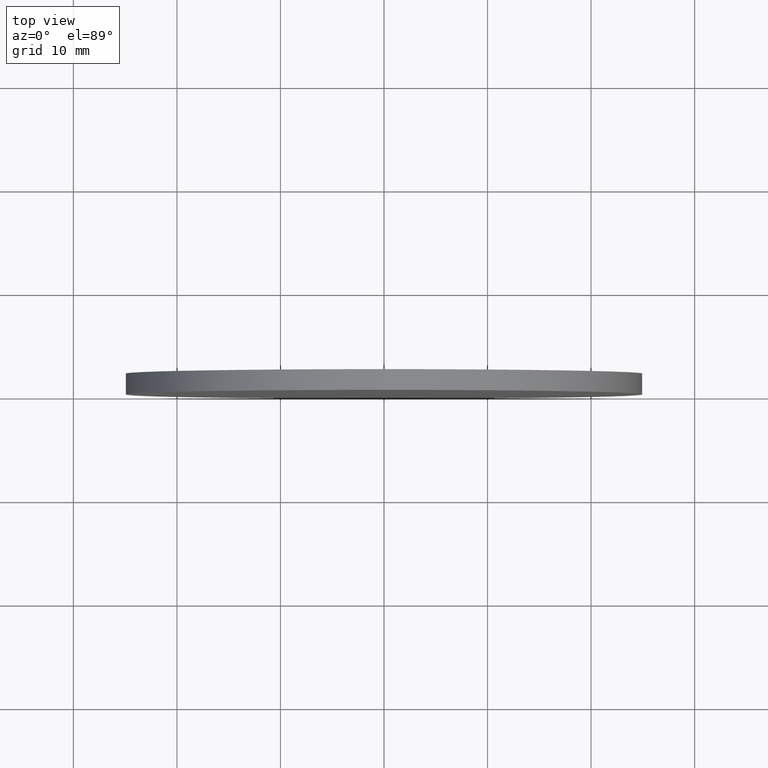
[diagram: clean part render]
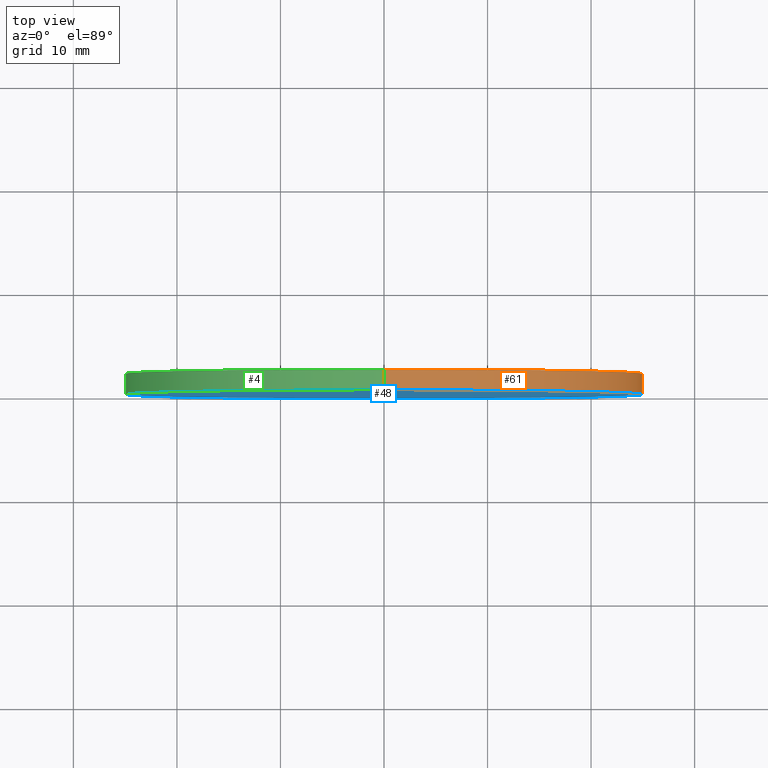
[diagram: same view with three faces highlighted in distinct colors, each labeled with its STEP entity id]
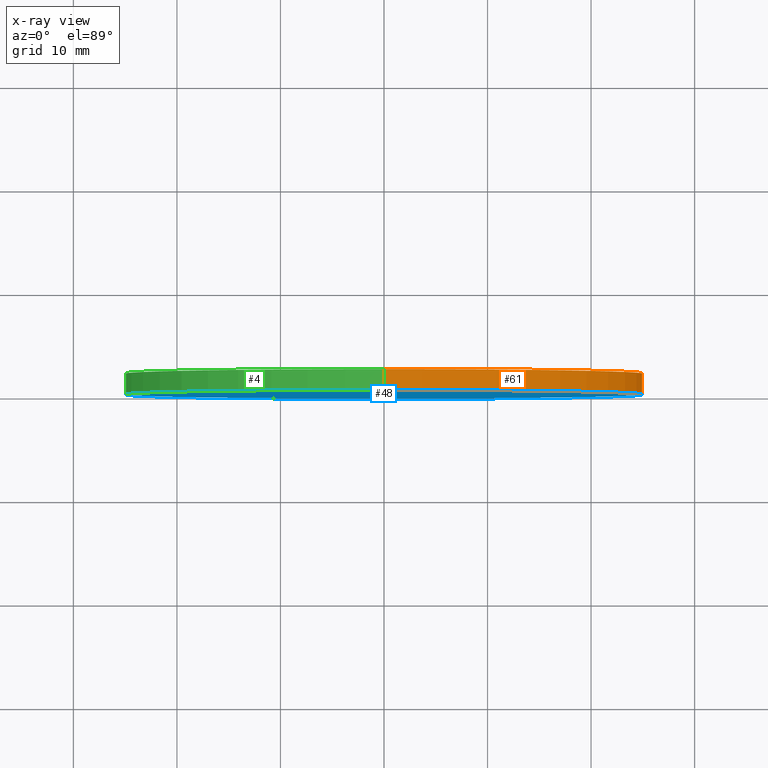
[diagram: x-ray of the same camera — body ghosted, the three highlighted faces saturated]
A machine part, top view with three faces highlighted in distinct colors.
The next image is the same camera in x-ray (body ghosted, the three faces saturated) — at least one of them is partly hidden behind the body in this view.
Their STEP definitions:

[orange] entity #61 — the highlighted cylindrical surface (partial cylindrical patch) has radius 25 mm, axis along (-0, -1, -0).
#3 = VERTEX_POINT ( 'NONE', #20 ) ;
#5 = VECTOR ( 'NONE', #100, 1000.000000000000000 ) ;
#10 = CARTESIAN_POINT ( 'NONE',  ( 0.0000000000000000000, 2.000000000000000000, 0.0000000000000000000 ) ) ;
#11 = CARTESIAN_POINT ( 'NONE',  ( 0.0000000000000000000, 2.000000000000000000, -25.00000000000000000 ) ) ;
#14 = VECTOR ( 'NONE', #70, 1000.000000000000000 ) ;
#15 = AXIS2_PLACEMENT_3D ( 'NONE', #34, #102, #19 ) ;
#17 = CARTESIAN_POINT ( 'NONE',  ( 3.061616997868383000E-015, 0.0000000000000000000, 25.00000000000000000 ) ) ;
#19 = DIRECTION ( 'NONE',  ( 0.0000000000000000000, 0.0000000000000000000, 1.000000000000000000 ) ) ;
#20 = CARTESIAN_POINT ( 'NONE',  ( 0.0000000000000000000, 2.000000000000000000, -25.00000000000000000 ) ) ;
#24 = ORIENTED_EDGE ( 'NONE', *, *, #66, .T. ) ;
#25 = EDGE_CURVE ( 'NONE', #86, #115, #98, .T. ) ;
#31 = AXIS2_PLACEMENT_3D ( 'NONE', #10, #54, #82 ) ;
#33 = FACE_OUTER_BOUND ( 'NONE', #60, .T. ) ;
#34 = CARTESIAN_POINT ( 'NONE',  ( 0.0000000000000000000, 2.000000000000000000, 0.0000000000000000000 ) ) ;
#35 = AXIS2_PLACEMENT_3D ( 'NONE', #130, #55, #124 ) ;
#36 = EDGE_CURVE ( 'NONE', #111, #3, #125, .T. ) ;
#46 = EDGE_CURVE ( 'NONE', #3, #115, #72, .T. ) ;
#53 = CARTESIAN_POINT ( 'NONE',  ( 0.0000000000000000000, 0.0000000000000000000, -25.00000000000000000 ) ) ;
#54 = DIRECTION ( 'NONE',  ( -0.0000000000000000000, -1.000000000000000000, -0.0000000000000000000 ) ) ;
#55 = DIRECTION ( 'NONE',  ( 0.0000000000000000000, 1.000000000000000000, 0.0000000000000000000 ) ) ;
#60 = EDGE_LOOP ( 'NONE', ( #132, #24, #113, #71 ) ) ;
#61 = ADVANCED_FACE ( 'NONE', ( #33 ), #91, .T. ) ;
#66 = EDGE_CURVE ( 'NONE', #111, #86, #104, .T. ) ;
#70 = DIRECTION ( 'NONE',  ( -0.0000000000000000000, -1.000000000000000000, -0.0000000000000000000 ) ) ;
#71 = ORIENTED_EDGE ( 'NONE', *, *, #46, .F. ) ;
#72 = LINE ( 'NONE', #11, #14 ) ;
#82 = DIRECTION ( 'NONE',  ( 0.0000000000000000000, 0.0000000000000000000, -1.000000000000000000 ) ) ;
#86 = VERTEX_POINT ( 'NONE', #17 ) ;
#91 = CYLINDRICAL_SURFACE ( 'NONE', #31, 25.00000000000000000 ) ;
#98 = CIRCLE ( 'NONE', #35, 25.00000000000000000 ) ;
#100 = DIRECTION ( 'NONE',  ( -0.0000000000000000000, -1.000000000000000000, -0.0000000000000000000 ) ) ;
#102 = DIRECTION ( 'NONE',  ( 0.0000000000000000000, 1.000000000000000000, 0.0000000000000000000 ) ) ;
#104 = LINE ( 'NONE', #129, #5 ) ;
#109 = CARTESIAN_POINT ( 'NONE',  ( 3.061616997868383000E-015, 2.000000000000000000, 25.00000000000000000 ) ) ;
#111 = VERTEX_POINT ( 'NONE', #109 ) ;
#113 = ORIENTED_EDGE ( 'NONE', *, *, #25, .T. ) ;
#115 = VERTEX_POINT ( 'NONE', #53 ) ;
#124 = DIRECTION ( 'NONE',  ( 0.0000000000000000000, 0.0000000000000000000, 1.000000000000000000 ) ) ;
#125 = CIRCLE ( 'NONE', #15, 25.00000000000000000 ) ;
#129 = CARTESIAN_POINT ( 'NONE',  ( 3.061616997868383000E-015, 2.000000000000000000, 25.00000000000000000 ) ) ;
#130 = CARTESIAN_POINT ( 'NONE',  ( 0.0000000000000000000, 0.0000000000000000000, 0.0000000000000000000 ) ) ;
#132 = ORIENTED_EDGE ( 'NONE', *, *, #36, .F. ) ;

[blue] entity #48 — the highlighted planar face has unit normal (0, 1, 0).
#13 = FACE_OUTER_BOUND ( 'NONE', #58, .T. ) ;
#17 = CARTESIAN_POINT ( 'NONE',  ( 3.061616997868383000E-015, 0.0000000000000000000, 25.00000000000000000 ) ) ;
#22 = ORIENTED_EDGE ( 'NONE', *, *, #25, .F. ) ;
#25 = EDGE_CURVE ( 'NONE', #86, #115, #98, .T. ) ;
#35 = AXIS2_PLACEMENT_3D ( 'NONE', #130, #55, #124 ) ;
#37 = AXIS2_PLACEMENT_3D ( 'NONE', #89, #42, #110 ) ;
#39 = EDGE_CURVE ( 'NONE', #115, #86, #44, .T. ) ;
#42 = DIRECTION ( 'NONE',  ( 0.0000000000000000000, 1.000000000000000000, 0.0000000000000000000 ) ) ;
#44 = CIRCLE ( 'NONE', #112, 25.00000000000000000 ) ;
#48 = ADVANCED_FACE ( 'NONE', ( #13 ), #123, .F. ) ;
#53 = CARTESIAN_POINT ( 'NONE',  ( 0.0000000000000000000, 0.0000000000000000000, -25.00000000000000000 ) ) ;
#55 = DIRECTION ( 'NONE',  ( 0.0000000000000000000, 1.000000000000000000, 0.0000000000000000000 ) ) ;
#58 = EDGE_LOOP ( 'NONE', ( #62, #22 ) ) ;
#62 = ORIENTED_EDGE ( 'NONE', *, *, #39, .F. ) ;
#69 = DIRECTION ( 'NONE',  ( 0.0000000000000000000, 0.0000000000000000000, 1.000000000000000000 ) ) ;
#81 = CARTESIAN_POINT ( 'NONE',  ( 0.0000000000000000000, 0.0000000000000000000, 0.0000000000000000000 ) ) ;
#86 = VERTEX_POINT ( 'NONE', #17 ) ;
#89 = CARTESIAN_POINT ( 'NONE',  ( 0.0000000000000000000, 0.0000000000000000000, 0.0000000000000000000 ) ) ;
#98 = CIRCLE ( 'NONE', #35, 25.00000000000000000 ) ;
#110 = DIRECTION ( 'NONE',  ( 0.0000000000000000000, -0.0000000000000000000, 1.000000000000000000 ) ) ;
#112 = AXIS2_PLACEMENT_3D ( 'NONE', #81, #140, #69 ) ;
#115 = VERTEX_POINT ( 'NONE', #53 ) ;
#123 = PLANE ( 'NONE',  #37 ) ;
#124 = DIRECTION ( 'NONE',  ( 0.0000000000000000000, 0.0000000000000000000, 1.000000000000000000 ) ) ;
#130 = CARTESIAN_POINT ( 'NONE',  ( 0.0000000000000000000, 0.0000000000000000000, 0.0000000000000000000 ) ) ;
#140 = DIRECTION ( 'NONE',  ( 0.0000000000000000000, 1.000000000000000000, 0.0000000000000000000 ) ) ;

[green] entity #4 — the highlighted cylindrical surface (partial cylindrical patch) has radius 25 mm, axis along (-0, -1, -0).
#1 = DIRECTION ( 'NONE',  ( 0.0000000000000000000, 0.0000000000000000000, -1.000000000000000000 ) ) ;
#3 = VERTEX_POINT ( 'NONE', #20 ) ;
#4 = ADVANCED_FACE ( 'NONE', ( #138 ), #74, .T. ) ;
#5 = VECTOR ( 'NONE', #100, 1000.000000000000000 ) ;
#8 = AXIS2_PLACEMENT_3D ( 'NONE', #79, #139, #68 ) ;
#11 = CARTESIAN_POINT ( 'NONE',  ( 0.0000000000000000000, 2.000000000000000000, -25.00000000000000000 ) ) ;
#12 = DIRECTION ( 'NONE',  ( -0.0000000000000000000, -1.000000000000000000, -0.0000000000000000000 ) ) ;
#14 = VECTOR ( 'NONE', #70, 1000.000000000000000 ) ;
#17 = CARTESIAN_POINT ( 'NONE',  ( 3.061616997868383000E-015, 0.0000000000000000000, 25.00000000000000000 ) ) ;
#20 = CARTESIAN_POINT ( 'NONE',  ( 0.0000000000000000000, 2.000000000000000000, -25.00000000000000000 ) ) ;
#32 = ORIENTED_EDGE ( 'NONE', *, *, #66, .F. ) ;
#39 = EDGE_CURVE ( 'NONE', #115, #86, #44, .T. ) ;
#44 = CIRCLE ( 'NONE', #112, 25.00000000000000000 ) ;
#46 = EDGE_CURVE ( 'NONE', #3, #115, #72, .T. ) ;
#47 = ORIENTED_EDGE ( 'NONE', *, *, #39, .T. ) ;
#53 = CARTESIAN_POINT ( 'NONE',  ( 0.0000000000000000000, 0.0000000000000000000, -25.00000000000000000 ) ) ;
#56 = ORIENTED_EDGE ( 'NONE', *, *, #57, .F. ) ;
#57 = EDGE_CURVE ( 'NONE', #3, #111, #121, .T. ) ;
#66 = EDGE_CURVE ( 'NONE', #111, #86, #104, .T. ) ;
#68 = DIRECTION ( 'NONE',  ( 0.0000000000000000000, 0.0000000000000000000, 1.000000000000000000 ) ) ;
#69 = DIRECTION ( 'NONE',  ( 0.0000000000000000000, 0.0000000000000000000, 1.000000000000000000 ) ) ;
#70 = DIRECTION ( 'NONE',  ( -0.0000000000000000000, -1.000000000000000000, -0.0000000000000000000 ) ) ;
#72 = LINE ( 'NONE', #11, #14 ) ;
#74 = CYLINDRICAL_SURFACE ( 'NONE', #93, 25.00000000000000000 ) ;
#79 = CARTESIAN_POINT ( 'NONE',  ( 0.0000000000000000000, 2.000000000000000000, 0.0000000000000000000 ) ) ;
#81 = CARTESIAN_POINT ( 'NONE',  ( 0.0000000000000000000, 0.0000000000000000000, 0.0000000000000000000 ) ) ;
#83 = ORIENTED_EDGE ( 'NONE', *, *, #46, .T. ) ;
#86 = VERTEX_POINT ( 'NONE', #17 ) ;
#93 = AXIS2_PLACEMENT_3D ( 'NONE', #103, #12, #1 ) ;
#94 = EDGE_LOOP ( 'NONE', ( #32, #56, #83, #47 ) ) ;
#100 = DIRECTION ( 'NONE',  ( -0.0000000000000000000, -1.000000000000000000, -0.0000000000000000000 ) ) ;
#103 = CARTESIAN_POINT ( 'NONE',  ( 0.0000000000000000000, 2.000000000000000000, 0.0000000000000000000 ) ) ;
#104 = LINE ( 'NONE', #129, #5 ) ;
#109 = CARTESIAN_POINT ( 'NONE',  ( 3.061616997868383000E-015, 2.000000000000000000, 25.00000000000000000 ) ) ;
#111 = VERTEX_POINT ( 'NONE', #109 ) ;
#112 = AXIS2_PLACEMENT_3D ( 'NONE', #81, #140, #69 ) ;
#115 = VERTEX_POINT ( 'NONE', #53 ) ;
#121 = CIRCLE ( 'NONE', #8, 25.00000000000000000 ) ;
#129 = CARTESIAN_POINT ( 'NONE',  ( 3.061616997868383000E-015, 2.000000000000000000, 25.00000000000000000 ) ) ;
#138 = FACE_OUTER_BOUND ( 'NONE', #94, .T. ) ;
#139 = DIRECTION ( 'NONE',  ( 0.0000000000000000000, 1.000000000000000000, 0.0000000000000000000 ) ) ;
#140 = DIRECTION ( 'NONE',  ( 0.0000000000000000000, 1.000000000000000000, 0.0000000000000000000 ) ) ;